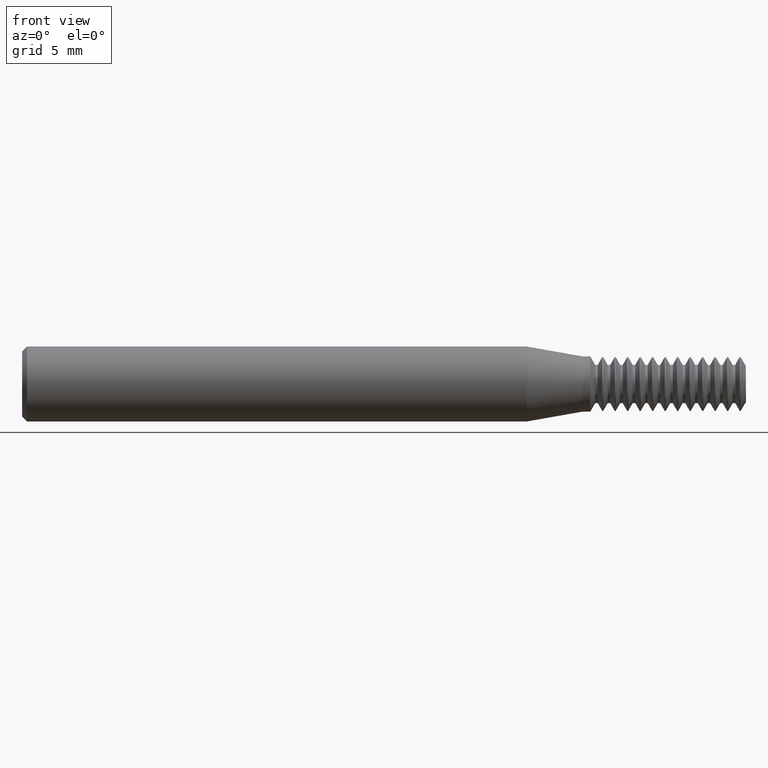
[diagram: clean part render]
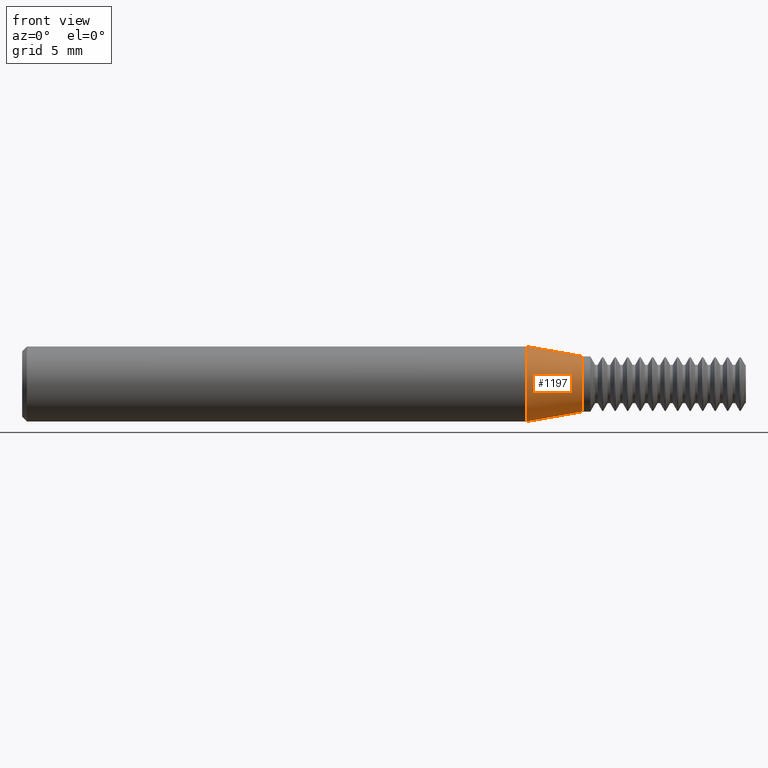
[diagram: same view with one face highlighted and labeled with its STEP entity id]
A machine part, front view. The second image highlights one B-rep face of the part: STEP entity #1197.
In plain terms, the highlighted conical surface has half-angle 10 deg.
Its self-contained STEP definition (entity closure, byte-faithful):
#7 = FACE_OUTER_BOUND ( 'NONE', #947, .T. ) ;
#43 = CARTESIAN_POINT ( 'NONE',  ( 1.765809736408148423, 0.0000000000000000000, 0.0000000000000000000 ) ) ;
#68 = VERTEX_POINT ( 'NONE', #1514 ) ;
#75 = CIRCLE ( 'NONE', #1798, 0.1179999999999999938 ) ;
#119 = DIRECTION ( 'NONE',  ( 0.0000000000000000000, 0.0000000000000000000, -1.000000000000000000 ) ) ;
#156 = EDGE_CURVE ( 'NONE', #289, #274, #1395, .T. ) ;
#262 = DIRECTION ( 'NONE',  ( 0.0000000000000000000, 0.0000000000000000000, 1.000000000000000000 ) ) ;
#273 = DIRECTION ( 'NONE',  ( -1.000000000000000000, 0.0000000000000000000, 0.0000000000000000000 ) ) ;
#274 = VERTEX_POINT ( 'NONE', #840 ) ;
#289 = VERTEX_POINT ( 'NONE', #2323 ) ;
#412 = EDGE_CURVE ( 'NONE', #2177, #68, #75, .T. ) ;
#537 = ORIENTED_EDGE ( 'NONE', *, *, #2005, .T. ) ;
#772 = CARTESIAN_POINT ( 'NONE',  ( 1.765809736408148423, 0.0000000000000000000, 0.0000000000000000000 ) ) ;
#840 = CARTESIAN_POINT ( 'NONE',  ( 1.765809736408148423, 1.255262969126036877E-17, -0.08699999999999999400 ) ) ;
#842 = VECTOR ( 'NONE', #1656, 39.37007874015748143 ) ;
#870 = LINE ( 'NONE', #1253, #842 ) ;
#892 = DIRECTION ( 'NONE',  ( -0.9848077530122080203, 2.126576849575774380E-17, -0.1736481776669305810 ) ) ;
#910 = CARTESIAN_POINT ( 'NONE',  ( 1.765809736408148423, 1.065442715258197088E-17, -0.08699999999999999400 ) ) ;
#947 = EDGE_LOOP ( 'NONE', ( #2049, #1504, #537, #2270 ) ) ;
#1011 = DIRECTION ( 'NONE',  ( 0.0000000000000000000, 0.0000000000000000000, -1.000000000000000000 ) ) ;
#1052 = EDGE_CURVE ( 'NONE', #274, #68, #1595, .T. ) ;
#1183 = DIRECTION ( 'NONE',  ( 1.000000000000000000, -0.0000000000000000000, -0.0000000000000000000 ) ) ;
#1197 = ADVANCED_FACE ( 'NONE', ( #7 ), #1905, .T. ) ;
#1253 = CARTESIAN_POINT ( 'NONE',  ( 1.765809736408148423, 0.0000000000000000000, 0.08699999999999999400 ) ) ;
#1268 = AXIS2_PLACEMENT_3D ( 'NONE', #772, #1638, #1011 ) ;
#1395 = CIRCLE ( 'NONE', #1268, 0.08699999999999999400 ) ;
#1504 = ORIENTED_EDGE ( 'NONE', *, *, #156, .F. ) ;
#1514 = CARTESIAN_POINT ( 'NONE',  ( 1.589999999999999636, 0.0000000000000000000, -0.1179999999999999938 ) ) ;
#1595 = LINE ( 'NONE', #910, #2179 ) ;
#1638 = DIRECTION ( 'NONE',  ( 1.000000000000000000, -0.0000000000000000000, -0.0000000000000000000 ) ) ;
#1656 = DIRECTION ( 'NONE',  ( -0.9848077530122080203, 0.0000000000000000000, 0.1736481776669305810 ) ) ;
#1798 = AXIS2_PLACEMENT_3D ( 'NONE', #1856, #1183, #119 ) ;
#1856 = CARTESIAN_POINT ( 'NONE',  ( 1.589999999999999636, 0.0000000000000000000, 0.0000000000000000000 ) ) ;
#1905 = CONICAL_SURFACE ( 'NONE', #2752, 0.08699999999999999400, 0.1745329251994331976 ) ;
#2005 = EDGE_CURVE ( 'NONE', #289, #2177, #870, .T. ) ;
#2049 = ORIENTED_EDGE ( 'NONE', *, *, #1052, .F. ) ;
#2177 = VERTEX_POINT ( 'NONE', #2587 ) ;
#2179 = VECTOR ( 'NONE', #892, 39.37007874015748143 ) ;
#2270 = ORIENTED_EDGE ( 'NONE', *, *, #412, .T. ) ;
#2323 = CARTESIAN_POINT ( 'NONE',  ( 1.765809736408148423, 0.0000000000000000000, 0.08699999999999999400 ) ) ;
#2587 = CARTESIAN_POINT ( 'NONE',  ( 1.589999999999999636, 1.445083222993876666E-17, 0.1179999999999999938 ) ) ;
#2752 = AXIS2_PLACEMENT_3D ( 'NONE', #43, #273, #262 ) ;